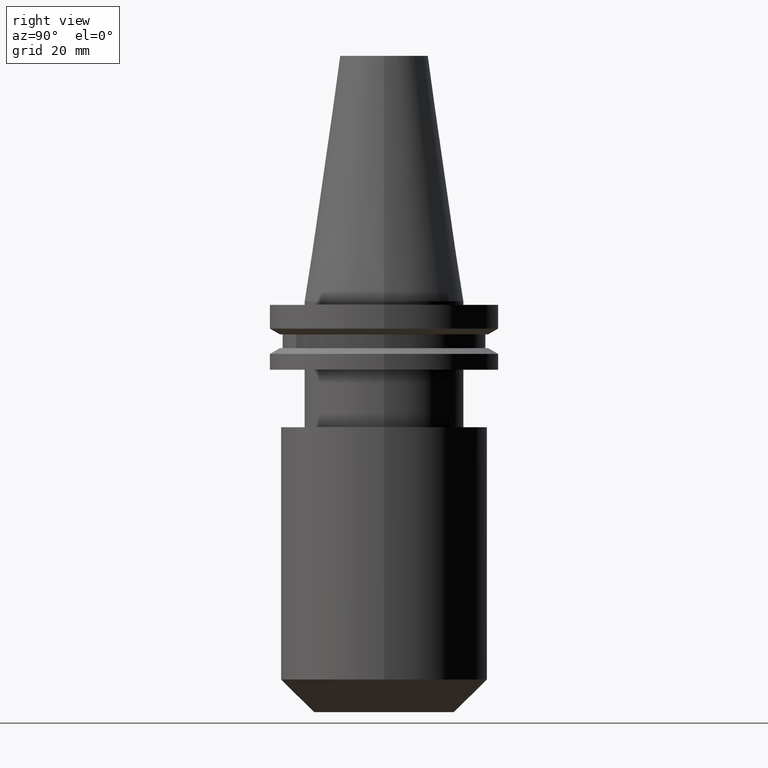
[diagram: clean part render]
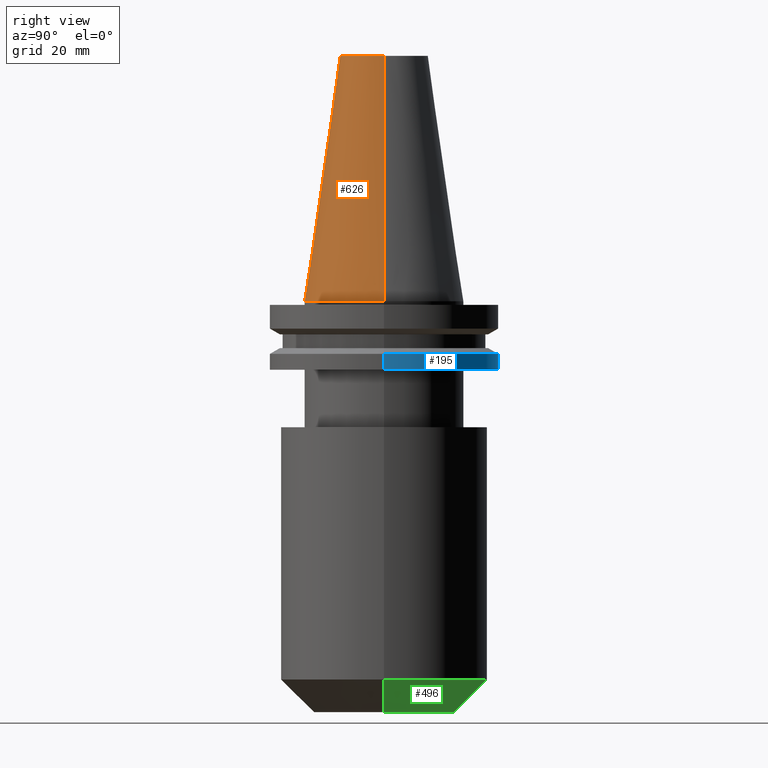
[diagram: same view with three faces highlighted in distinct colors, each labeled with its STEP entity id]
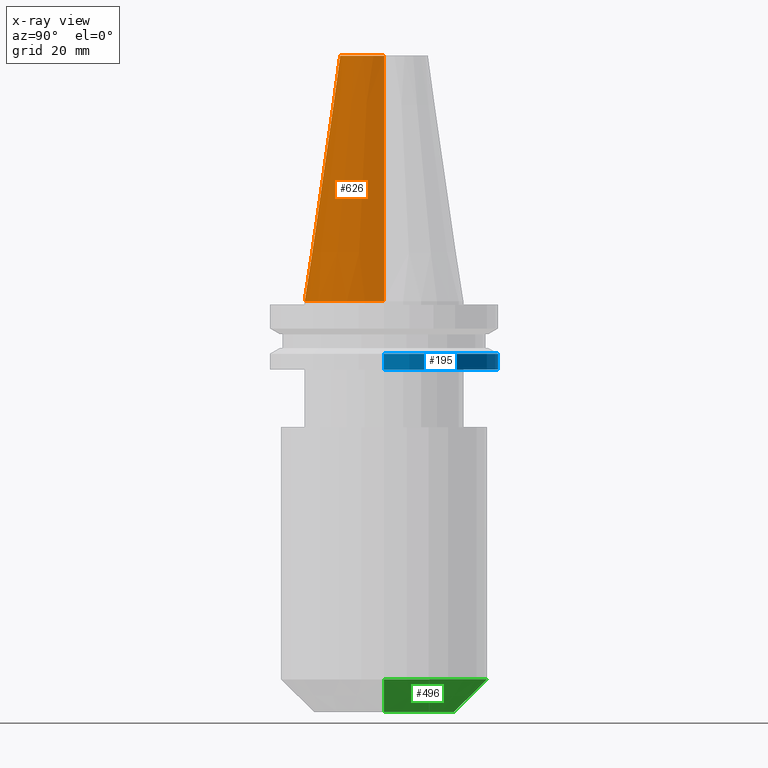
[diagram: x-ray of the same camera — body ghosted, the three highlighted faces saturated]
A machine part, right view with three faces highlighted in distinct colors.
The next image is the same camera in x-ray (body ghosted, the three faces saturated) — at least one of them is partly hidden behind the body in this view.
Their STEP definitions:

[orange] entity #626 — the highlighted conical surface has half-angle 8.297 deg.
#3 = VECTOR ( 'NONE', #502, 999.9999999999998863 ) ;
#17 = ORIENTED_EDGE ( 'NONE', *, *, #362, .T. ) ;
#48 = LINE ( 'NONE', #97, #3 ) ;
#80 = EDGE_CURVE ( 'NONE', #265, #439, #475, .T. ) ;
#83 = CARTESIAN_POINT ( 'NONE',  ( -12.27178102086201150, 0.000000000000000000, 68.25000000000000000 ) ) ;
#97 = CARTESIAN_POINT ( 'NONE',  ( 22.22500000000000142, 2.721777511104992849E-15, 0.000000000000000000 ) ) ;
#103 = CARTESIAN_POINT ( 'NONE',  ( 0.000000000000000000, 0.000000000000000000, 68.25000000000000000 ) ) ;
#145 = CARTESIAN_POINT ( 'NONE',  ( -22.22500000000000142, 0.000000000000000000, 0.000000000000000000 ) ) ;
#159 = DIRECTION ( 'NONE',  ( -1.000000000000000000, 0.000000000000000000, 0.000000000000000000 ) ) ;
#202 = EDGE_LOOP ( 'NONE', ( #770, #721, #17, #336 ) ) ;
#213 = AXIS2_PLACEMENT_3D ( 'NONE', #356, #227, #159 ) ;
#219 = LINE ( 'NONE', #145, #748 ) ;
#227 = DIRECTION ( 'NONE',  ( 0.000000000000000000, 0.000000000000000000, -1.000000000000000000 ) ) ;
#265 = VERTEX_POINT ( 'NONE', #425 ) ;
#317 = DIRECTION ( 'NONE',  ( -0.000000000000000000, -0.000000000000000000, 1.000000000000000000 ) ) ;
#331 = VERTEX_POINT ( 'NONE', #83 ) ;
#336 = ORIENTED_EDGE ( 'NONE', *, *, #80, .T. ) ;
#356 = CARTESIAN_POINT ( 'NONE',  ( 0.000000000000000000, 0.000000000000000000, 0.000000000000000000 ) ) ;
#362 = EDGE_CURVE ( 'NONE', #331, #265, #219, .T. ) ;
#376 = CIRCLE ( 'NONE', #559, 12.27178102086201150 ) ;
#387 = AXIS2_PLACEMENT_3D ( 'NONE', #489, #317, #459 ) ;
#409 = DIRECTION ( 'NONE',  ( -0.1443082272672999711, 0.000000000000000000, -0.9895327864921755756 ) ) ;
#425 = CARTESIAN_POINT ( 'NONE',  ( -22.22500000000000142, 0.000000000000000000, 0.000000000000000000 ) ) ;
#428 = EDGE_CURVE ( 'NONE', #331, #503, #376, .T. ) ;
#439 = VERTEX_POINT ( 'NONE', #839 ) ;
#440 = EDGE_CURVE ( 'NONE', #503, #439, #48, .T. ) ;
#459 = DIRECTION ( 'NONE',  ( 1.000000000000000000, 0.000000000000000000, 0.000000000000000000 ) ) ;
#475 = CIRCLE ( 'NONE', #387, 22.22500000000000142 ) ;
#489 = CARTESIAN_POINT ( 'NONE',  ( 0.000000000000000000, 0.000000000000000000, 0.000000000000000000 ) ) ;
#502 = DIRECTION ( 'NONE',  ( 0.1443082272672999711, 1.767266086135276757E-17, -0.9895327864921755756 ) ) ;
#503 = VERTEX_POINT ( 'NONE', #570 ) ;
#559 = AXIS2_PLACEMENT_3D ( 'NONE', #103, #704, #696 ) ;
#570 = CARTESIAN_POINT ( 'NONE',  ( 12.27178102086201150, 2.112318622904291439E-15, 68.25000000000000000 ) ) ;
#622 = FACE_OUTER_BOUND ( 'NONE', #202, .T. ) ;
#626 = ADVANCED_FACE ( 'NONE', ( #622 ), #706, .T. ) ;
#696 = DIRECTION ( 'NONE',  ( 1.000000000000000000, 0.000000000000000000, 0.000000000000000000 ) ) ;
#704 = DIRECTION ( 'NONE',  ( -0.000000000000000000, -0.000000000000000000, 1.000000000000000000 ) ) ;
#706 = CONICAL_SURFACE ( 'NONE', #213, 22.22500000000000142, 0.1448138465474119174 ) ;
#721 = ORIENTED_EDGE ( 'NONE', *, *, #428, .F. ) ;
#748 = VECTOR ( 'NONE', #409, 999.9999999999998863 ) ;
#770 = ORIENTED_EDGE ( 'NONE', *, *, #440, .F. ) ;
#839 = CARTESIAN_POINT ( 'NONE',  ( 22.22500000000000142, 2.721777511104992849E-15, 0.000000000000000000 ) ) ;

[blue] entity #195 — the highlighted cylindrical surface (partial cylindrical patch) has radius 31.75 mm, axis along (-0, -0, 1).
#74 = CYLINDRICAL_SURFACE ( 'NONE', #237, 31.75000000000000000 ) ;
#75 = ORIENTED_EDGE ( 'NONE', *, *, #390, .T. ) ;
#88 = AXIS2_PLACEMENT_3D ( 'NONE', #800, #200, #654 ) ;
#102 = AXIS2_PLACEMENT_3D ( 'NONE', #269, #794, #541 ) ;
#138 = CARTESIAN_POINT ( 'NONE',  ( -31.74999999999999289, 3.888253587292845687E-15, -19.04999999999999716 ) ) ;
#166 = ORIENTED_EDGE ( 'NONE', *, *, #850, .T. ) ;
#172 = ORIENTED_EDGE ( 'NONE', *, *, #526, .F. ) ;
#178 = CARTESIAN_POINT ( 'NONE',  ( -31.75000000000000000, 3.888253587292846476E-15, 68.25000000000000000 ) ) ;
#195 = ADVANCED_FACE ( 'NONE', ( #405 ), #74, .T. ) ;
#200 = DIRECTION ( 'NONE',  ( -0.000000000000000000, -0.000000000000000000, 1.000000000000000000 ) ) ;
#237 = AXIS2_PLACEMENT_3D ( 'NONE', #575, #838, #242 ) ;
#240 = LINE ( 'NONE', #253, #507 ) ;
#242 = DIRECTION ( 'NONE',  ( 1.000000000000000000, 0.000000000000000000, 0.000000000000000000 ) ) ;
#253 = CARTESIAN_POINT ( 'NONE',  ( 31.75000000000000000, 0.000000000000000000, 68.25000000000000000 ) ) ;
#269 = CARTESIAN_POINT ( 'NONE',  ( 0.000000000000000000, 0.000000000000000000, -19.04999999999999716 ) ) ;
#272 = ORIENTED_EDGE ( 'NONE', *, *, #854, .F. ) ;
#315 = LINE ( 'NONE', #178, #462 ) ;
#390 = EDGE_CURVE ( 'NONE', #782, #574, #315, .T. ) ;
#405 = FACE_OUTER_BOUND ( 'NONE', #569, .T. ) ;
#462 = VECTOR ( 'NONE', #824, 1000.000000000000000 ) ;
#464 = CIRCLE ( 'NONE', #102, 31.74999999999999289 ) ;
#484 = VERTEX_POINT ( 'NONE', #519 ) ;
#507 = VECTOR ( 'NONE', #707, 1000.000000000000000 ) ;
#519 = CARTESIAN_POINT ( 'NONE',  ( 31.74999999999999289, 0.000000000000000000, -19.04999999999999716 ) ) ;
#526 = EDGE_CURVE ( 'NONE', #484, #656, #240, .T. ) ;
#541 = DIRECTION ( 'NONE',  ( 1.000000000000000000, 0.000000000000000000, 0.000000000000000000 ) ) ;
#546 = CIRCLE ( 'NONE', #88, 31.75000000000000000 ) ;
#569 = EDGE_LOOP ( 'NONE', ( #166, #75, #272, #172 ) ) ;
#574 = VERTEX_POINT ( 'NONE', #809 ) ;
#575 = CARTESIAN_POINT ( 'NONE',  ( 0.000000000000000000, 0.000000000000000000, 68.25000000000000000 ) ) ;
#633 = CARTESIAN_POINT ( 'NONE',  ( 31.75000000000000000, 0.000000000000000000, -14.65472339340266572 ) ) ;
#654 = DIRECTION ( 'NONE',  ( 1.000000000000000000, 0.000000000000000000, 0.000000000000000000 ) ) ;
#656 = VERTEX_POINT ( 'NONE', #633 ) ;
#707 = DIRECTION ( 'NONE',  ( -0.000000000000000000, -0.000000000000000000, 1.000000000000000000 ) ) ;
#782 = VERTEX_POINT ( 'NONE', #138 ) ;
#794 = DIRECTION ( 'NONE',  ( -0.000000000000000000, -0.000000000000000000, 1.000000000000000000 ) ) ;
#800 = CARTESIAN_POINT ( 'NONE',  ( 0.000000000000000000, 0.000000000000000000, -14.65472339340266572 ) ) ;
#809 = CARTESIAN_POINT ( 'NONE',  ( -31.75000000000000000, 3.888253587292846476E-15, -14.65472339340266572 ) ) ;
#824 = DIRECTION ( 'NONE',  ( -0.000000000000000000, -0.000000000000000000, 1.000000000000000000 ) ) ;
#838 = DIRECTION ( 'NONE',  ( -0.000000000000000000, -0.000000000000000000, 1.000000000000000000 ) ) ;
#850 = EDGE_CURVE ( 'NONE', #484, #782, #464, .T. ) ;
#854 = EDGE_CURVE ( 'NONE', #656, #574, #546, .T. ) ;

[green] entity #496 — the highlighted conical surface has half-angle 45 deg.
#20 = AXIS2_PLACEMENT_3D ( 'NONE', #776, #185, #106 ) ;
#68 = CIRCLE ( 'NONE', #389, 19.49999999999996803 ) ;
#79 = ORIENTED_EDGE ( 'NONE', *, *, #772, .F. ) ;
#106 = DIRECTION ( 'NONE',  ( 1.000000000000000000, 0.000000000000000000, 0.000000000000000000 ) ) ;
#156 = CONICAL_SURFACE ( 'NONE', #20, 19.49999999999996803, 0.7853981633974501664 ) ;
#157 = CIRCLE ( 'NONE', #722, 28.60000000000000142 ) ;
#179 = EDGE_CURVE ( 'NONE', #621, #837, #455, .T. ) ;
#185 = DIRECTION ( 'NONE',  ( -0.000000000000000000, -0.000000000000000000, 1.000000000000000000 ) ) ;
#197 = CARTESIAN_POINT ( 'NONE',  ( -28.60000000000000142, 3.502489845561430207E-15, -105.2000000000000028 ) ) ;
#222 = CARTESIAN_POINT ( 'NONE',  ( 19.49999999999996803, 0.000000000000000000, -114.2999999999999972 ) ) ;
#284 = ORIENTED_EDGE ( 'NONE', *, *, #301, .T. ) ;
#301 = EDGE_CURVE ( 'NONE', #621, #411, #68, .T. ) ;
#324 = CARTESIAN_POINT ( 'NONE',  ( 19.49999999999996803, 0.000000000000000000, -114.2999999999999972 ) ) ;
#370 = EDGE_CURVE ( 'NONE', #411, #608, #811, .T. ) ;
#374 = DIRECTION ( 'NONE',  ( 1.000000000000000000, 0.000000000000000000, 0.000000000000000000 ) ) ;
#389 = AXIS2_PLACEMENT_3D ( 'NONE', #752, #606, #550 ) ;
#411 = VERTEX_POINT ( 'NONE', #441 ) ;
#441 = CARTESIAN_POINT ( 'NONE',  ( -19.49999999999996803, 2.945275551949382601E-15, -114.2999999999999972 ) ) ;
#442 = DIRECTION ( 'NONE',  ( -0.000000000000000000, -0.000000000000000000, 1.000000000000000000 ) ) ;
#455 = LINE ( 'NONE', #324, #647 ) ;
#496 = ADVANCED_FACE ( 'NONE', ( #515 ), #156, .T. ) ;
#509 = ORIENTED_EDGE ( 'NONE', *, *, #179, .F. ) ;
#510 = CARTESIAN_POINT ( 'NONE',  ( 0.000000000000000000, 0.000000000000000000, -105.2000000000000028 ) ) ;
#515 = FACE_OUTER_BOUND ( 'NONE', #604, .T. ) ;
#550 = DIRECTION ( 'NONE',  ( 1.000000000000000000, 0.000000000000000000, 0.000000000000000000 ) ) ;
#564 = DIRECTION ( 'NONE',  ( -0.7071067811865489050, 8.659560562354950115E-17, 0.7071067811865462405 ) ) ;
#602 = CARTESIAN_POINT ( 'NONE',  ( 28.60000000000000142, 0.000000000000000000, -105.2000000000000028 ) ) ;
#604 = EDGE_LOOP ( 'NONE', ( #284, #681, #79, #509 ) ) ;
#606 = DIRECTION ( 'NONE',  ( -0.000000000000000000, -0.000000000000000000, 1.000000000000000000 ) ) ;
#608 = VERTEX_POINT ( 'NONE', #197 ) ;
#610 = VECTOR ( 'NONE', #564, 999.9999999999998863 ) ;
#621 = VERTEX_POINT ( 'NONE', #222 ) ;
#647 = VECTOR ( 'NONE', #714, 999.9999999999998863 ) ;
#679 = CARTESIAN_POINT ( 'NONE',  ( -19.49999999999996803, 2.388061258337334995E-15, -114.2999999999999972 ) ) ;
#681 = ORIENTED_EDGE ( 'NONE', *, *, #370, .T. ) ;
#714 = DIRECTION ( 'NONE',  ( 0.7071067811865489050, 0.000000000000000000, 0.7071067811865462405 ) ) ;
#722 = AXIS2_PLACEMENT_3D ( 'NONE', #510, #442, #374 ) ;
#752 = CARTESIAN_POINT ( 'NONE',  ( 0.000000000000000000, 0.000000000000000000, -114.2999999999999972 ) ) ;
#772 = EDGE_CURVE ( 'NONE', #837, #608, #157, .T. ) ;
#776 = CARTESIAN_POINT ( 'NONE',  ( 0.000000000000000000, 0.000000000000000000, -114.2999999999999972 ) ) ;
#811 = LINE ( 'NONE', #679, #610 ) ;
#837 = VERTEX_POINT ( 'NONE', #602 ) ;